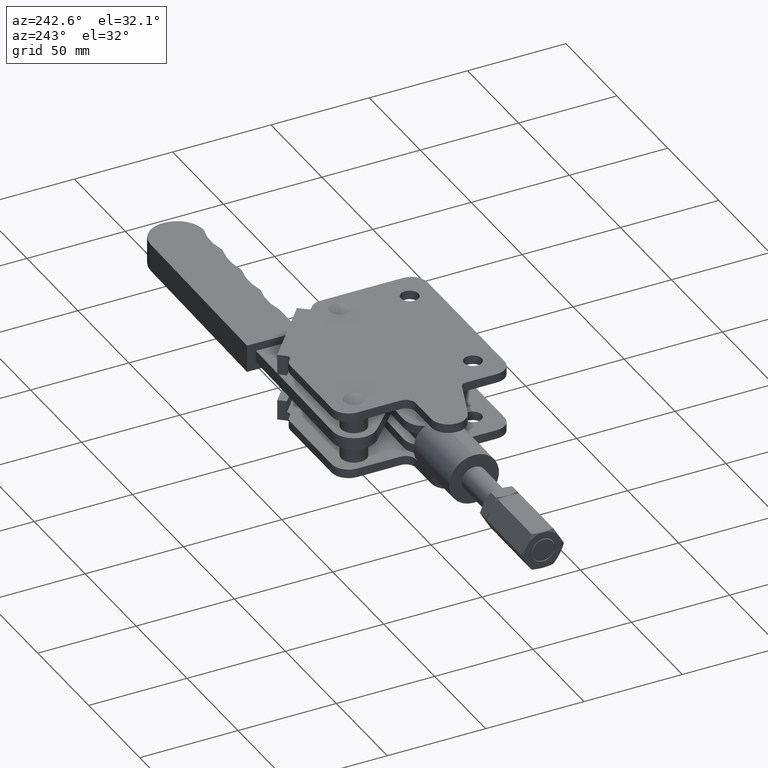
[diagram: clean part render]
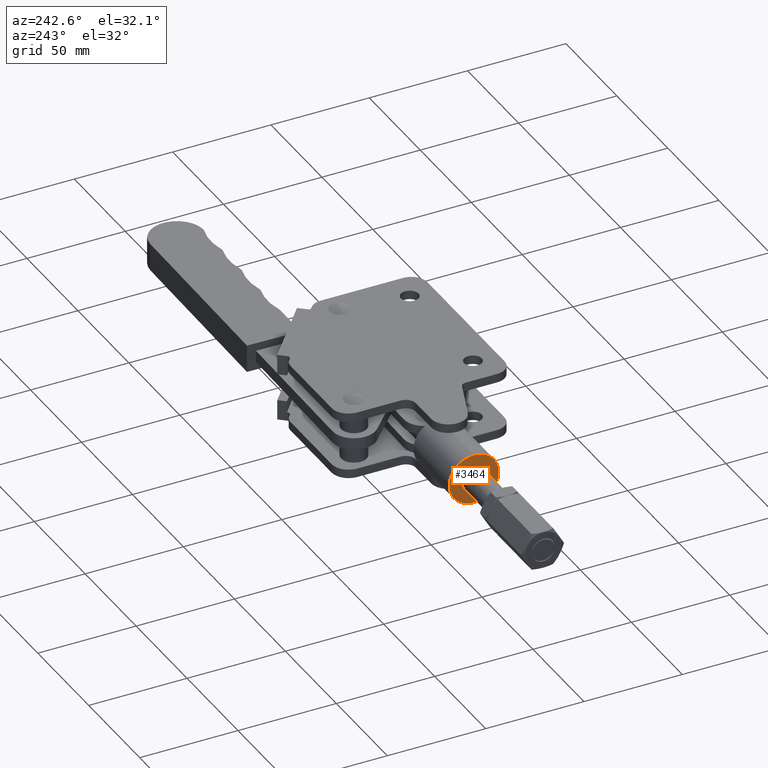
[diagram: same view with one face highlighted and labeled with its STEP entity id]
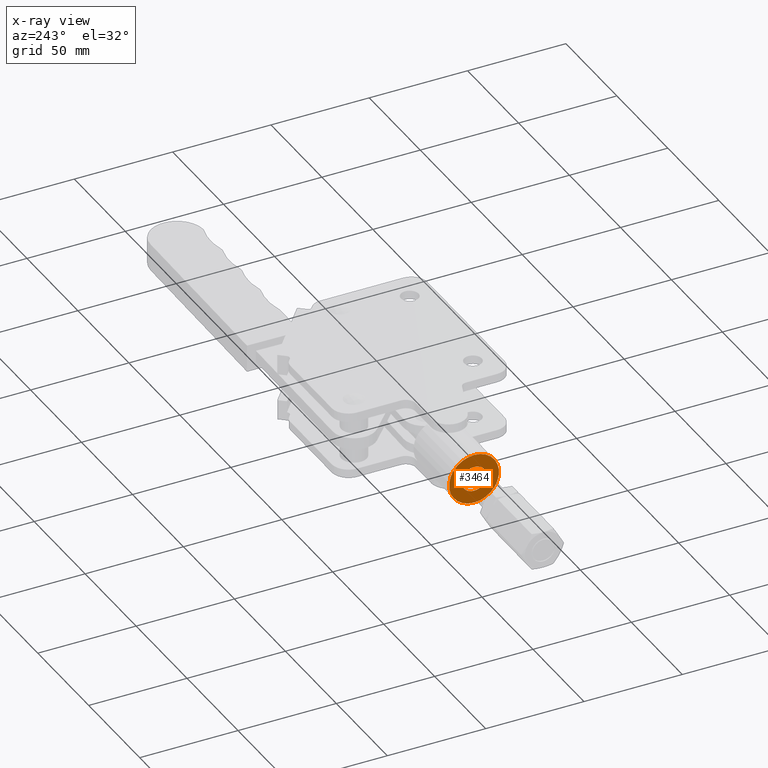
[diagram: x-ray of the same camera — body ghosted, the highlighted face saturated]
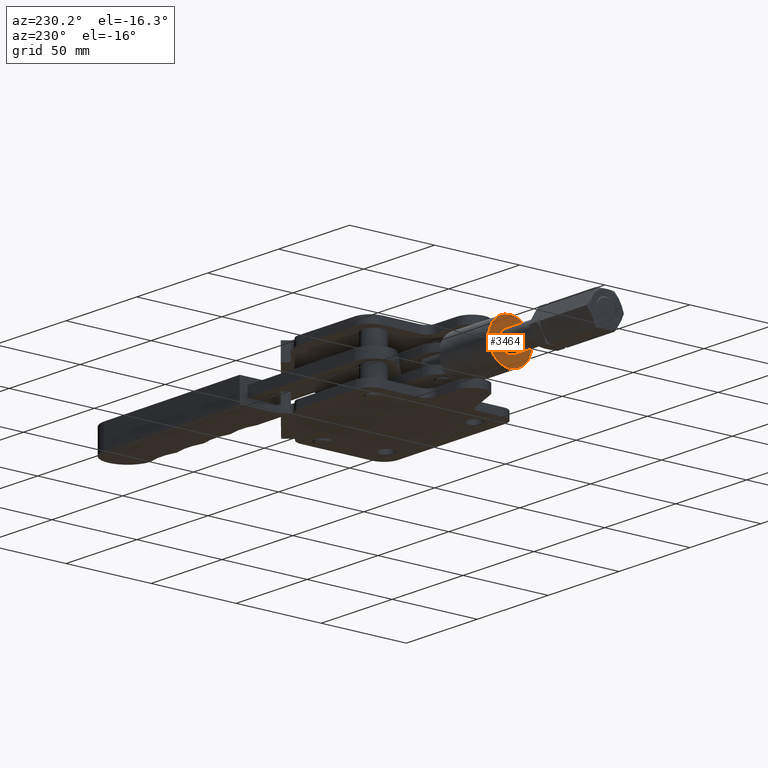
[diagram: same view with one face highlighted and labeled with its STEP entity id]
A machine part, auxiliary view. The second image highlights one B-rep face of the part: STEP entity #3464.
The next image is the same camera in x-ray: the body ghosted, the highlighted face saturated — about 0% of this face is hidden behind the body in this view.
A second angle (auxiliary view) of the same face is appended — the face is thin or edge-on in the first view.
In plain terms, the highlighted planar face has unit normal (1, 0, 0).
Its self-contained STEP definition (entity closure, byte-faithful):
#112 = CARTESIAN_POINT ( 'NONE',  ( -142.0000001797797600, 24.00000000000000000, -10.84999999999998700 ) ) ;
#325 = VERTEX_POINT ( 'NONE', #4595 ) ;
#359 = ORIENTED_EDGE ( 'NONE', *, *, #4834, .F. ) ;
#915 = CARTESIAN_POINT ( 'NONE',  ( -142.0000001797797600, 24.00000000000000000, -17.19999999999998500 ) ) ;
#1503 = CARTESIAN_POINT ( 'NONE',  ( -142.0000001797797600, 24.00000000000000000, -4.499999999999986700 ) ) ;
#1519 = EDGE_LOOP ( 'NONE', ( #2310, #359 ) ) ;
#1535 = DIRECTION ( 'NONE',  ( 0.0000000000000000000, 0.0000000000000000000, -1.000000000000000000 ) ) ;
#1660 = DIRECTION ( 'NONE',  ( 1.000000000000000000, 0.0000000000000000000, 0.0000000000000000000 ) ) ;
#1679 = ORIENTED_EDGE ( 'NONE', *, *, #6745, .T. ) ;
#1800 = DIRECTION ( 'NONE',  ( 1.000000000000000000, 0.0000000000000000000, 0.0000000000000000000 ) ) ;
#2198 = AXIS2_PLACEMENT_3D ( 'NONE', #915, #5265, #1535 ) ;
#2239 = EDGE_LOOP ( 'NONE', ( #2688, #1679 ) ) ;
#2245 = PLANE ( 'NONE',  #6601 ) ;
#2281 = DIRECTION ( 'NONE',  ( 1.000000000000000000, 0.0000000000000000000, 0.0000000000000000000 ) ) ;
#2310 = ORIENTED_EDGE ( 'NONE', *, *, #3007, .F. ) ;
#2688 = ORIENTED_EDGE ( 'NONE', *, *, #2942, .T. ) ;
#2779 = VERTEX_POINT ( 'NONE', #5217 ) ;
#2781 = VERTEX_POINT ( 'NONE', #1503 ) ;
#2796 = CIRCLE ( 'NONE', #8011, 6.350000000000001400 ) ;
#2923 = CIRCLE ( 'NONE', #7486, 6.350000000000001400 ) ;
#2942 = EDGE_CURVE ( 'NONE', #7658, #325, #2923, .T. ) ;
#3007 = EDGE_CURVE ( 'NONE', #2781, #2779, #4665, .T. ) ;
#3119 = FACE_BOUND ( 'NONE', #2239, .T. ) ;
#3464 = ADVANCED_FACE ( 'NONE', ( #3119, #4976 ), #2245, .F. ) ;
#3474 = CARTESIAN_POINT ( 'NONE',  ( -142.0000001797797600, 24.00000000000000000, -17.19999999999998500 ) ) ;
#3936 = CIRCLE ( 'NONE', #2198, 12.69999999999999900 ) ;
#4121 = DIRECTION ( 'NONE',  ( 0.0000000000000000000, 0.0000000000000000000, -1.000000000000000000 ) ) ;
#4595 = CARTESIAN_POINT ( 'NONE',  ( -142.0000001797797600, 24.00000000000000000, -23.54999999999998600 ) ) ;
#4665 = CIRCLE ( 'NONE', #6920, 12.69999999999999900 ) ;
#4834 = EDGE_CURVE ( 'NONE', #2779, #2781, #3936, .T. ) ;
#4976 = FACE_OUTER_BOUND ( 'NONE', #1519, .T. ) ;
#5217 = CARTESIAN_POINT ( 'NONE',  ( -142.0000001797797600, 24.00000000000000000, -29.89999999999998400 ) ) ;
#5265 = DIRECTION ( 'NONE',  ( 1.000000000000000000, 0.0000000000000000000, 0.0000000000000000000 ) ) ;
#5385 = CARTESIAN_POINT ( 'NONE',  ( -142.0000001797797600, 24.00000000000000000, -17.19999999999998500 ) ) ;
#5517 = CARTESIAN_POINT ( 'NONE',  ( -142.0000001797797600, 24.00000000000000000, -17.19999999999998500 ) ) ;
#5983 = CARTESIAN_POINT ( 'NONE',  ( -142.0000001797797600, 24.00000000000000000, -17.19999999999998500 ) ) ;
#5984 = DIRECTION ( 'NONE',  ( 0.0000000000000000000, 0.0000000000000000000, -1.000000000000000000 ) ) ;
#6123 = DIRECTION ( 'NONE',  ( 0.0000000000000000000, 0.0000000000000000000, -1.000000000000000000 ) ) ;
#6601 = AXIS2_PLACEMENT_3D ( 'NONE', #3474, #7815, #4121 ) ;
#6611 = DIRECTION ( 'NONE',  ( 0.0000000000000000000, 0.0000000000000000000, -1.000000000000000000 ) ) ;
#6745 = EDGE_CURVE ( 'NONE', #325, #7658, #2796, .T. ) ;
#6920 = AXIS2_PLACEMENT_3D ( 'NONE', #5517, #1800, #6123 ) ;
#7486 = AXIS2_PLACEMENT_3D ( 'NONE', #5385, #1660, #5984 ) ;
#7658 = VERTEX_POINT ( 'NONE', #112 ) ;
#7815 = DIRECTION ( 'NONE',  ( 1.000000000000000000, 0.0000000000000000000, 0.0000000000000000000 ) ) ;
#8011 = AXIS2_PLACEMENT_3D ( 'NONE', #5983, #2281, #6611 ) ;